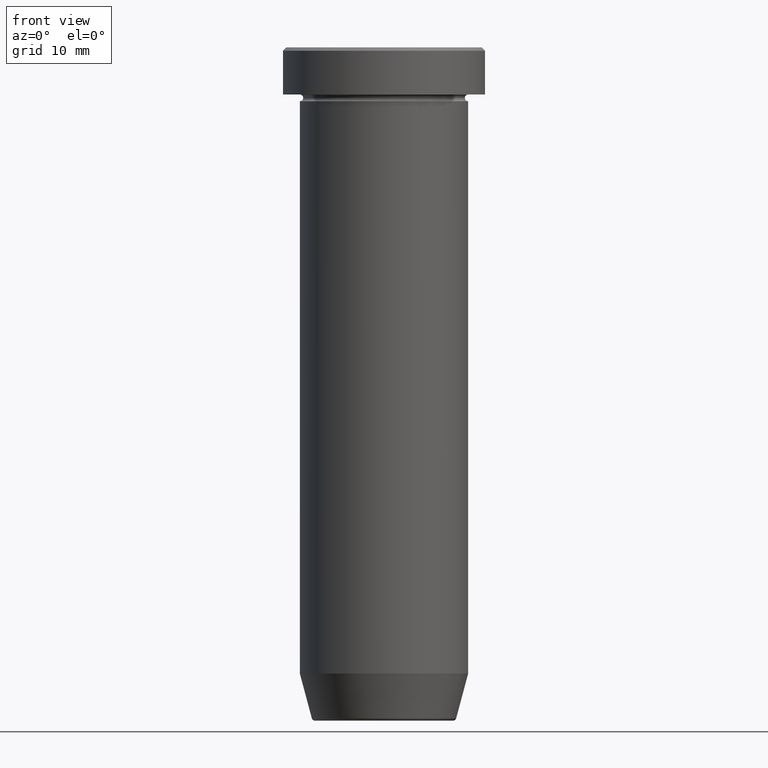
[diagram: clean part render]
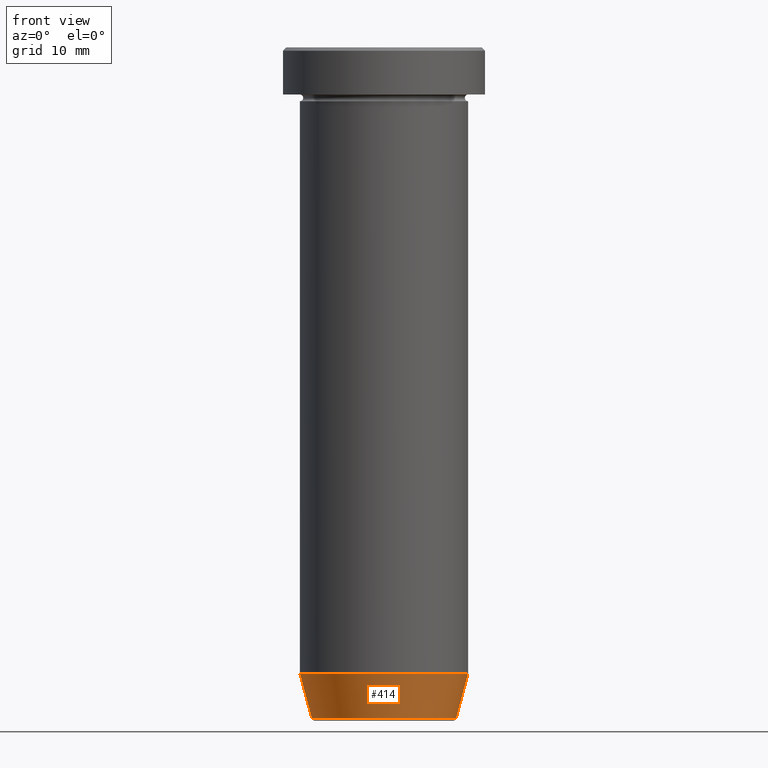
[diagram: same view with one face highlighted and labeled with its STEP entity id]
A machine part, front view. The second image highlights one B-rep face of the part: STEP entity #414.
In plain terms, the highlighted conical surface has half-angle 15 deg.
Its self-contained STEP definition (entity closure, byte-faithful):
#3 = CARTESIAN_POINT ( 'NONE',  ( -12.50000000000000000, 1.530808498934191521E-15, -93.00000000000000000 ) ) ;
#28 = DIRECTION ( 'NONE',  ( -0.000000000000000000, -0.000000000000000000, 1.000000000000000000 ) ) ;
#117 = DIRECTION ( 'NONE',  ( -0.000000000000000000, -0.000000000000000000, 1.000000000000000000 ) ) ;
#122 = CARTESIAN_POINT ( 'NONE',  ( 10.72365507213719305, 0.000000000000000000, -99.62940952255128479 ) ) ;
#129 = CARTESIAN_POINT ( 'NONE',  ( 10.62435565298213902, 0.000000000000000000, -100.0000000000000000 ) ) ;
#133 = DIRECTION ( 'NONE',  ( 0.2588190451025209060, 0.000000000000000000, 0.9659258262890682012 ) ) ;
#136 = CARTESIAN_POINT ( 'NONE',  ( -10.62435565298213902, 1.301108314342766318E-15, -100.0000000000000000 ) ) ;
#153 = VERTEX_POINT ( 'NONE', #122 ) ;
#171 = CIRCLE ( 'NONE', #559, 12.50000000000000000 ) ;
#206 = EDGE_CURVE ( 'NONE', #284, #153, #230, .T. ) ;
#216 = EDGE_CURVE ( 'NONE', #284, #320, #453, .T. ) ;
#218 = DIRECTION ( 'NONE',  ( 1.000000000000000000, 0.000000000000000000, 0.000000000000000000 ) ) ;
#230 = CIRCLE ( 'NONE', #592, 10.72365507213719482 ) ;
#240 = VECTOR ( 'NONE', #422, 1000.000000000000000 ) ;
#253 = DIRECTION ( 'NONE',  ( 1.000000000000000000, 0.000000000000000000, 0.000000000000000000 ) ) ;
#257 = CARTESIAN_POINT ( 'NONE',  ( 12.50000000000000000, 0.000000000000000000, -93.00000000000000000 ) ) ;
#269 = CONICAL_SURFACE ( 'NONE', #354, 10.62435565298213902, 0.2617993877991495744 ) ;
#272 = EDGE_CURVE ( 'NONE', #153, #526, #466, .T. ) ;
#273 = CARTESIAN_POINT ( 'NONE',  ( -10.72365507213719305, 1.422038742429750516E-15, -99.62940952255128479 ) ) ;
#284 = VERTEX_POINT ( 'NONE', #273 ) ;
#288 = ORIENTED_EDGE ( 'NONE', *, *, #206, .T. ) ;
#314 = FACE_OUTER_BOUND ( 'NONE', #437, .T. ) ;
#320 = VERTEX_POINT ( 'NONE', #3 ) ;
#354 = AXIS2_PLACEMENT_3D ( 'NONE', #584, #537, #253 ) ;
#390 = ORIENTED_EDGE ( 'NONE', *, *, #216, .F. ) ;
#414 = ADVANCED_FACE ( 'NONE', ( #314 ), #269, .T. ) ;
#422 = DIRECTION ( 'NONE',  ( -0.2588190451025209060, 3.169619151431766790E-17, 0.9659258262890682012 ) ) ;
#430 = VECTOR ( 'NONE', #133, 1000.000000000000000 ) ;
#434 = ORIENTED_EDGE ( 'NONE', *, *, #493, .F. ) ;
#437 = EDGE_LOOP ( 'NONE', ( #390, #288, #596, #434 ) ) ;
#453 = LINE ( 'NONE', #136, #240 ) ;
#466 = LINE ( 'NONE', #129, #430 ) ;
#493 = EDGE_CURVE ( 'NONE', #320, #526, #171, .T. ) ;
#499 = DIRECTION ( 'NONE',  ( -1.000000000000000000, 0.000000000000000000, 0.000000000000000000 ) ) ;
#526 = VERTEX_POINT ( 'NONE', #257 ) ;
#537 = DIRECTION ( 'NONE',  ( -0.000000000000000000, -0.000000000000000000, 1.000000000000000000 ) ) ;
#559 = AXIS2_PLACEMENT_3D ( 'NONE', #581, #28, #218 ) ;
#581 = CARTESIAN_POINT ( 'NONE',  ( 0.000000000000000000, 0.000000000000000000, -93.00000000000000000 ) ) ;
#584 = CARTESIAN_POINT ( 'NONE',  ( 0.000000000000000000, 0.000000000000000000, -100.0000000000000000 ) ) ;
#585 = CARTESIAN_POINT ( 'NONE',  ( 0.000000000000000000, 0.000000000000000000, -99.62940952255128479 ) ) ;
#592 = AXIS2_PLACEMENT_3D ( 'NONE', #585, #117, #499 ) ;
#596 = ORIENTED_EDGE ( 'NONE', *, *, #272, .T. ) ;